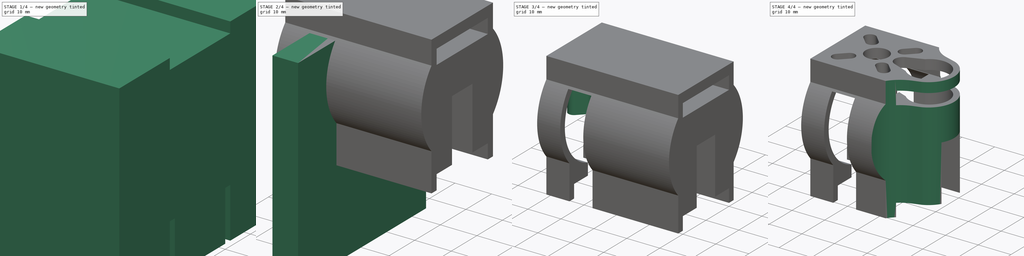
[diagram: build sequence overview — one tinted view per stage of 4, left to right]
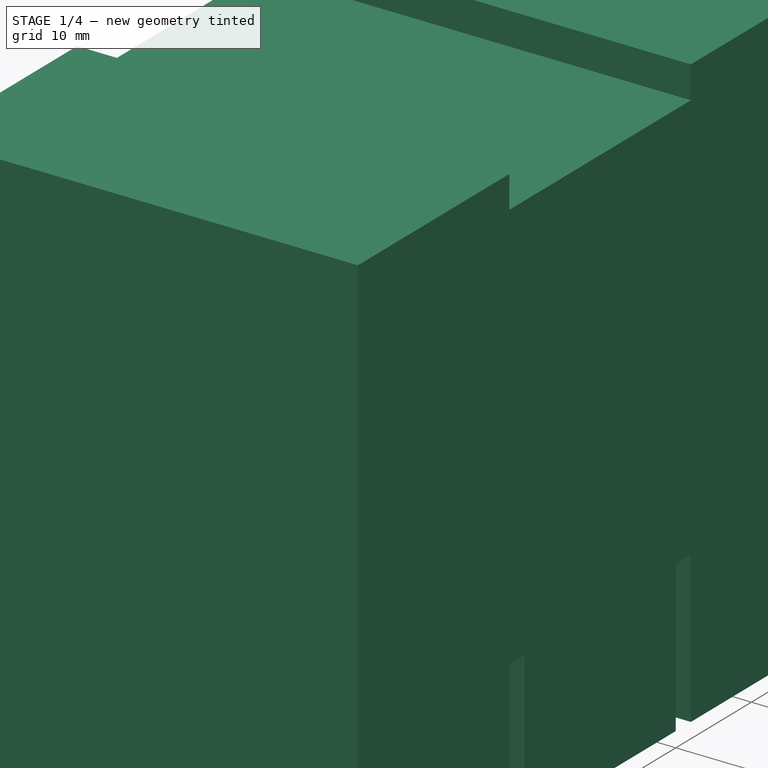
[diagram: stage 1 of 4 — iso view after this stage's code; geometry added in this stage tinted green]
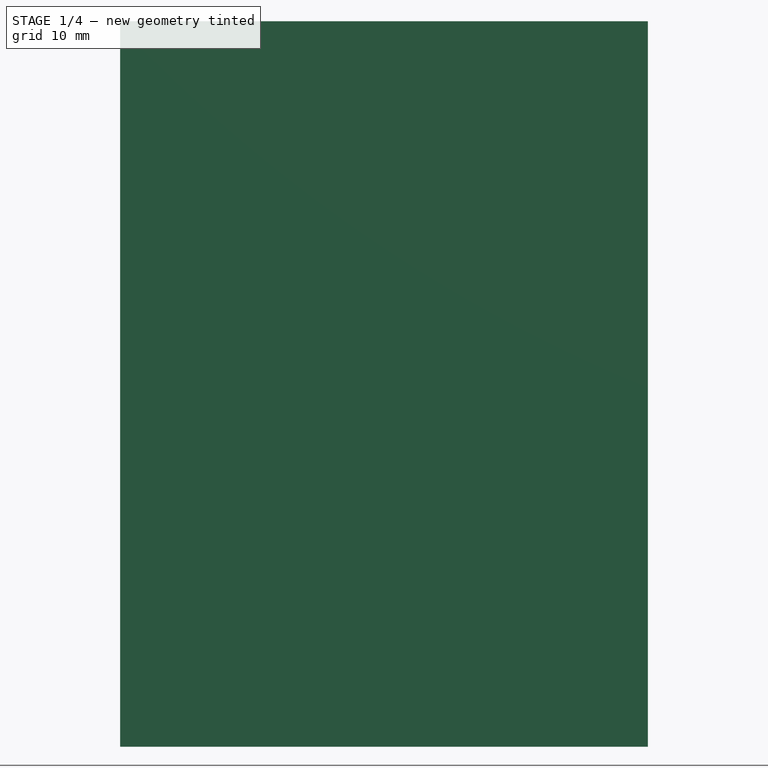
[diagram: stage 1 of 4 — front view after this stage's code; geometry added in this stage tinted green]
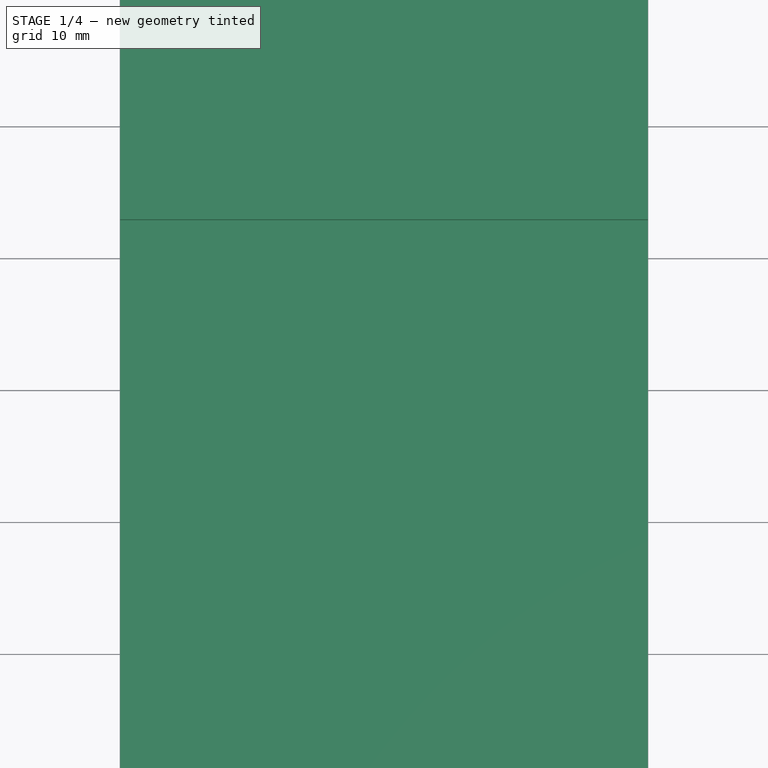
[diagram: stage 1 of 4 — top view after this stage's code; geometry added in this stage tinted green]
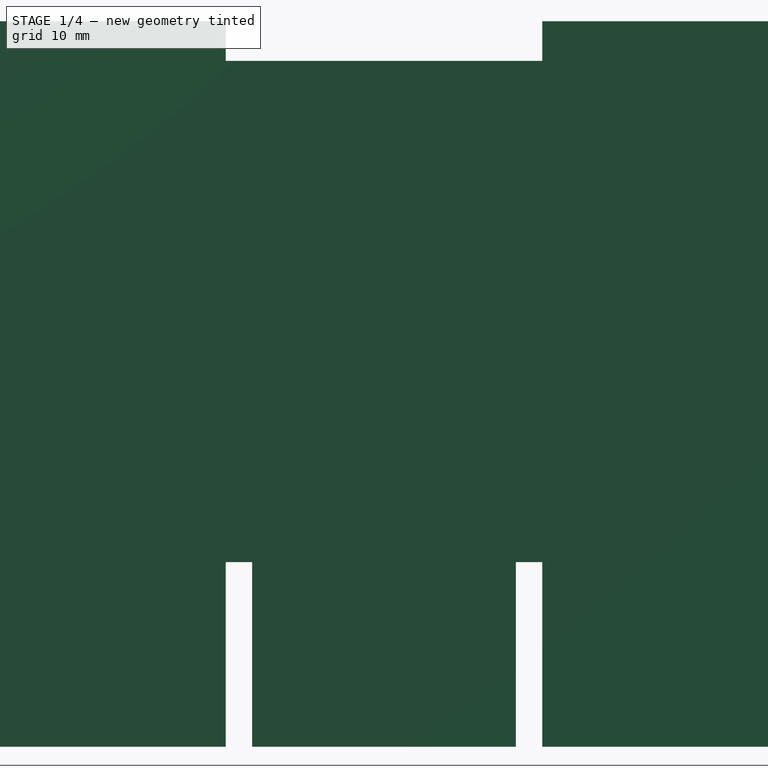
[diagram: stage 1 of 4 — right view after this stage's code; geometry added in this stage tinted green]
FCSTD DOCUMENT  (FreeCAD 0.16R6700 (Git))
Label: motor_landing_gear3
License: All rights reserved
LicenseURL: http://en.wikipedia.org/wiki/All_rights_reserved
objects: Part::Cut×5, Sketcher::SketchObject×4, Part::Extrusion×4, Part::Box×1, Part::Cylinder×1
note: 15 computed .brp shape members not serialized (recipe doc carries the construction recipe); baked Part::Feature solids carry a one-line shape summary decoded from their .brp

FEATURE [Part::Box] Box  label="Cube"
  Height = 38
  Length = 40
  Placement = pos=(0,-20,-21) rot=(0,0,1;0rad)
  Width = 40
FEATURE [Part::Cylinder] Cylinder
  Angle = 360
  Height = 21
  Placement = pos=(0,0,0) rot=(0,1,0;1.5708rad)
  Radius = 14
FEATURE [Part::Extrusion] Extrude004  label="Outer_tube_profile_extrude"
  Base = -> Sketch001
  Dir = (40,0,0)
  Solid = true
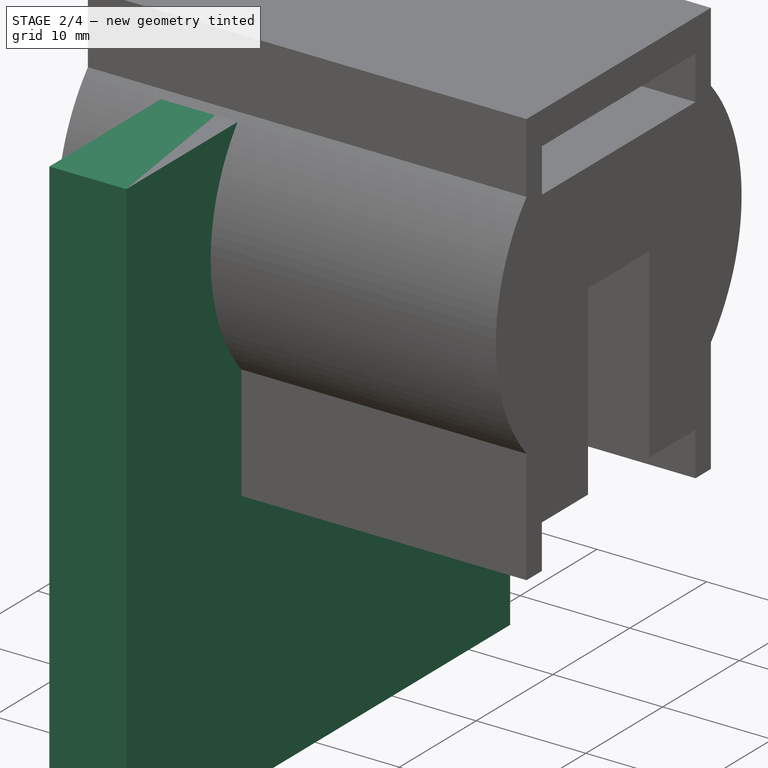
[diagram: stage 2 of 4 — iso view after this stage's code; geometry added in this stage tinted green]
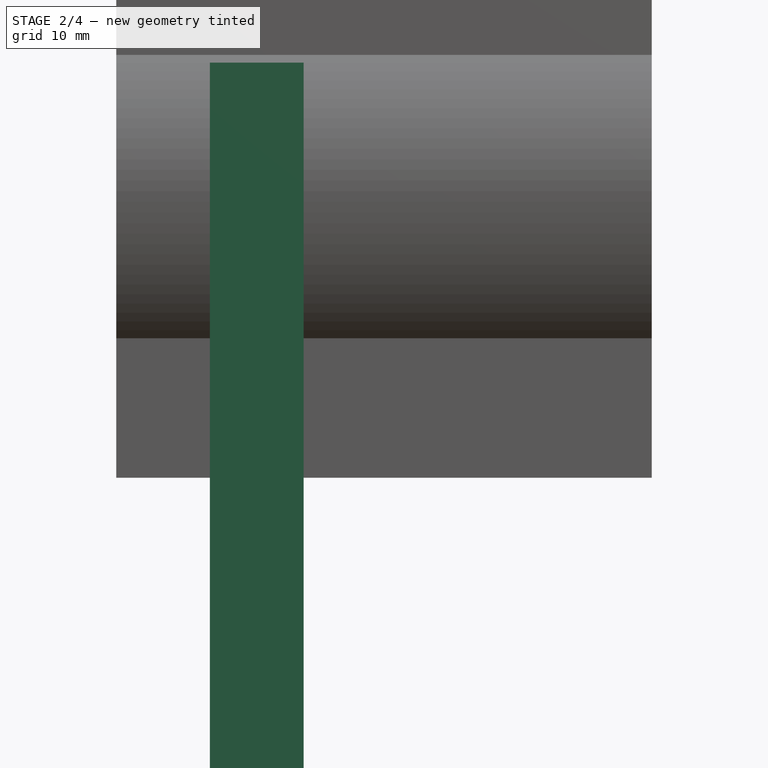
[diagram: stage 2 of 4 — front view after this stage's code; geometry added in this stage tinted green]
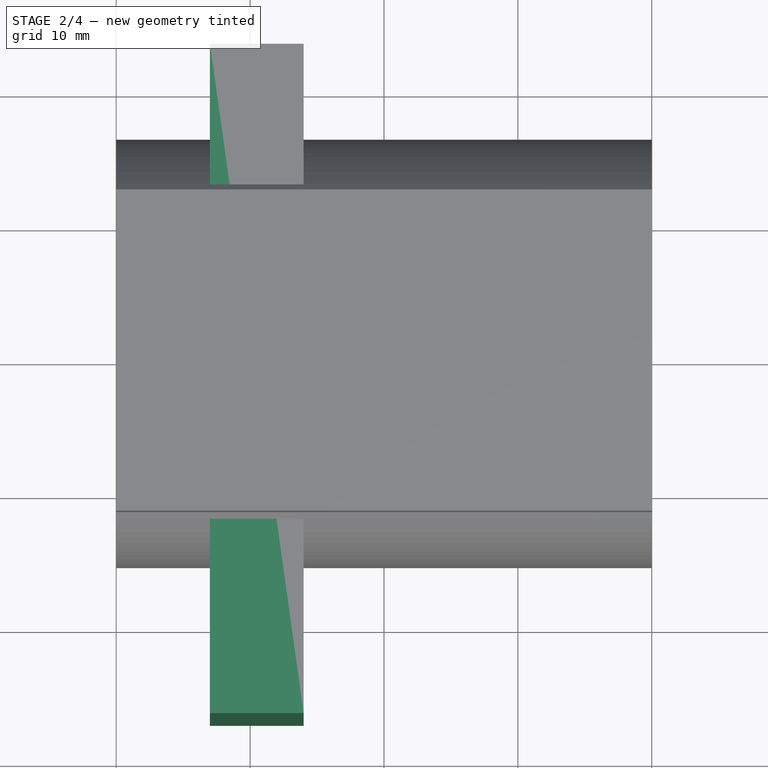
[diagram: stage 2 of 4 — top view after this stage's code; geometry added in this stage tinted green]
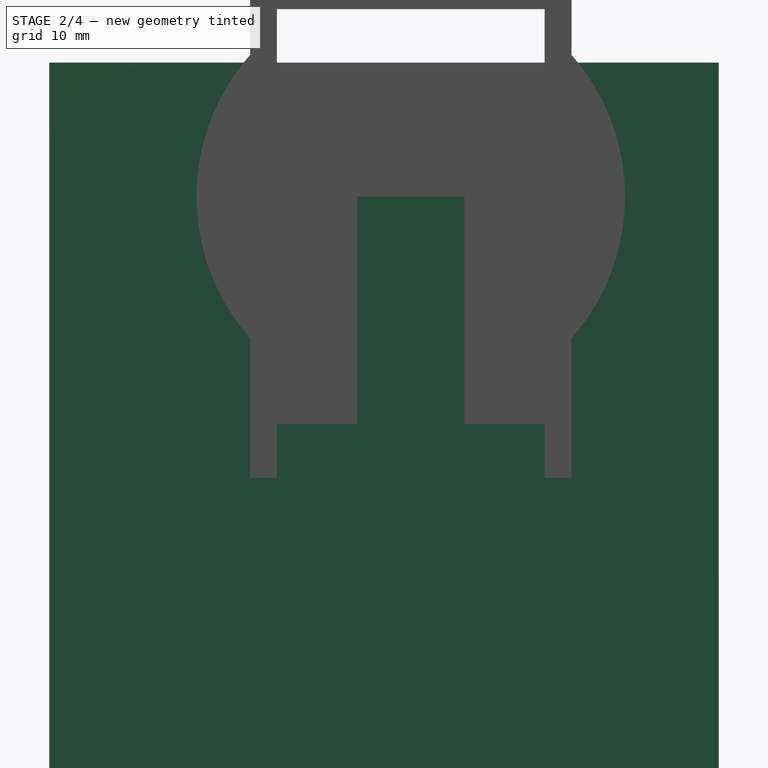
[diagram: stage 2 of 4 — right view after this stage's code; geometry added in this stage tinted green]
FEATURE [Part::Cut] Cut
  Base = -> Box
  Tool = -> Cylinder
FEATURE [Sketcher::SketchObject] Sketch001  label="Outer_tube_profile_sketch"
  Placement = pos=(0,0,0) rot=(0.57735,-0.57735,-0.57735;2.0944rad)
  sketch-geometry (24):
    g0: LineSegment StartX=-12 StartY=20 StartZ=0 EndX=-12 EndY=10.583 EndZ=0
    g1: ArcOfCircle CenterX=0 CenterY=0 CenterZ=0 NormalX=0 NormalY=0 NormalZ=1 Radius=16 StartAngle=5.56045 EndAngle=7.00592
    g2: ArcOfCircle CenterX=0 CenterY=0 CenterZ=0 NormalX=0 NormalY=0 NormalZ=1 Radius=16 StartAngle=2.41886 EndAngle=3.86433
    g3: LineSegment StartX=-12 StartY=20 StartZ=0 EndX=-32 EndY=20 EndZ=0
    g4: LineSegment StartX=-32 StartY=20 StartZ=0 EndX=-32 EndY=-35 EndZ=0
    g5: LineSegment StartX=-32 StartY=-35 StartZ=0 EndX=-12 EndY=-35 EndZ=0
    g6: LineSegment StartX=-12 StartY=-35 StartZ=0 EndX=-12 EndY=-10.583 EndZ=0
    g7: LineSegment StartX=12 StartY=20 StartZ=0 EndX=12 EndY=10.583 EndZ=0
    g8: LineSegment StartX=12 StartY=20 StartZ=0 EndX=32 EndY=20 EndZ=0
    g9: LineSegment StartX=32 StartY=20 StartZ=0 EndX=32 EndY=-35 EndZ=0
    g10: LineSegment StartX=32 StartY=-35 StartZ=0 EndX=12 EndY=-35 EndZ=0
    g11: LineSegment StartX=12 StartY=-35 StartZ=0 EndX=12 EndY=-10.583 EndZ=0
    g12: LineSegment StartX=-4 StartY=0 StartZ=0 EndX=4 EndY=0 EndZ=0
    g13: LineSegment StartX=4 StartY=0 StartZ=0 EndX=4 EndY=-17 EndZ=0
    g14: LineSegment StartX=4 StartY=-17 StartZ=0 EndX=10 EndY=-17 EndZ=0
    g15: LineSegment StartX=10 StartY=-17 StartZ=0 EndX=10 EndY=-35 EndZ=0
    g16: LineSegment StartX=10 StartY=-35 StartZ=0 EndX=-10 EndY=-35 EndZ=0
    g17: LineSegment StartX=-10 StartY=-35 StartZ=0 EndX=-10 EndY=-17 EndZ=0
    g18: LineSegment StartX=-10 StartY=-17 StartZ=0 EndX=-4 EndY=-17 EndZ=0
    g19: LineSegment StartX=-4 StartY=-17 StartZ=0 EndX=-4 EndY=0 EndZ=0
    g20: LineSegment StartX=-10 StartY=14 StartZ=0 EndX=10 EndY=14 EndZ=0
    g21: LineSegment StartX=10 StartY=14 StartZ=0 EndX=10 EndY=10 EndZ=0
    g22: LineSegment StartX=10 StartY=10 StartZ=0 EndX=-10 EndY=10 EndZ=0
    g23: LineSegment StartX=-10 StartY=10 StartZ=0 EndX=-10 EndY=14 EndZ=0
  constraints (68):
    c: Coincident(g2,g0)
    c: Coincident(g3,g0)
    c: Coincident(g7,g1)
    c: Coincident(g11,g1)
    c: Coincident(g6,g2)
    c: Coincident(g3,g4)
    c: Coincident(g4,g5)
    c: Coincident(g6,g5)
    c: Coincident(g9,g8)
    c: Coincident(g10,g9)
    c: Coincident(g11,g10)
    c: Coincident(g12,g13)
    c: Coincident(g19,g12)
    c: Coincident(g13,g14)
    c: Coincident(g15,g14)
    c: Coincident(g16,g15)
    c: Coincident(g16,g17)
    c: Coincident(g18,g17)
    c: Coincident(g19,g18)
    c: Radius(g1) = 16
    c: Symmetric(g0,g7,g-2)
    c: Symmetric(g3,g8,g-2)
    c: Symmetric(g12,g12,g-2)
    c: Symmetric(g2,g1,g-2)
    c: Symmetric(g14,g17,g-2)
    c: Horizontal(g3)
    c: Horizontal(g8)
    c: Vertical(g4)
    c: Vertical(g9)
    c: Vertical(g6)
    c: Vertical(g11)
    c: Vertical(g0)
    c: Vertical(g7)
    c: Vertical(g19)
    c: Vertical(g13)
    c: Vertical(g17)
    c: Horizontal(g18)
    c: Horizontal(g14)
    c: Horizontal(g5)
    c: Horizontal(g16)
    c: Horizontal(g10)
    c: Distance(g9) = 55
    c: Distance(g12) = 8
    c: Distance(g16) = 20
    c: Distance(g10) = 20
    c: Coincident(g2,g-1)
    c: Coincident(g1,g-1)
    c: Coincident(g8,g7)
    c: Distance(g7,g0) = 24
    c: DistanceY(g-1,g3) = 20
    c: Symmetric(g4,g9,g-2)
    c: Vertical(g15)
    c: Distance(g17) = 18
    c: Distance(g5,g16) = 2
    c: Distance(g13) = 17
    c: PointOnObject(g12,g-1)
    c: Coincident(g20,g21)
    c: Coincident(g21,g22)
    c: Coincident(g22,g23)
    c: Coincident(g23,g20)
    c: Horizontal(g20)
    c: Horizontal(g22)
    c: Vertical(g21)
    c: Vertical(g23)
    c: Symmetric(g20,g20,g-2)
    c: DistanceY(g-1,g20) = 14
    c: Distance(g20) = 20
    c: Distance(g21) = 4
FEATURE [Sketcher::SketchObject] Sketch002  label="Side_cut_lite_sketch"
  Placement = pos=(0,23,0) rot=(0,0.707107,0.707107;3.14159rad)
  sketch-geometry (5):
    g0: LineSegment StartX=-14 StartY=10 StartZ=0 EndX=-7 EndY=10 EndZ=0
    g1: LineSegment [constr] StartX=-10.5 StartY=10 StartZ=0 EndX=-10.5 EndY=-28 EndZ=0
    g2: LineSegment StartX=-14 StartY=10 StartZ=0 EndX=-14 EndY=-45 EndZ=0
    g3: LineSegment StartX=-14 StartY=-45 StartZ=0 EndX=-7 EndY=-45 EndZ=0
    g4: LineSegment StartX=-7 StartY=-45 StartZ=0 EndX=-7 EndY=10 EndZ=0
  constraints (15):
    c: Symmetric(g0,g0,g1)
    c: DistanceX(g-2,g0) = -7
    c: Coincident(g2,g0)
    c: Vertical(g2)
    c: Coincident(g3,g2)
    c: Horizontal(g3)
    c: Coincident(g4,g3)
    c: Coincident(g4,g0)
    c: Vertical(g4)
    c: Distance(g2) = 55
    c: Vertical(g1)
    c: Distance(g3) = 7
    c: Distance(g1) = 38
    c: DistanceY(g-1,g0) = 10
    c: PointOnObject(g1,g0)
FEATURE [Part::Extrusion] Extrude002  label="Side_cute_lite_extrude"
  Base = -> Sketch002
  Dir = (0,-50,0)
  Solid = true
FEATURE [Part::Cut] Cut001
  Base = -> Cut
  Tool = -> Extrude004
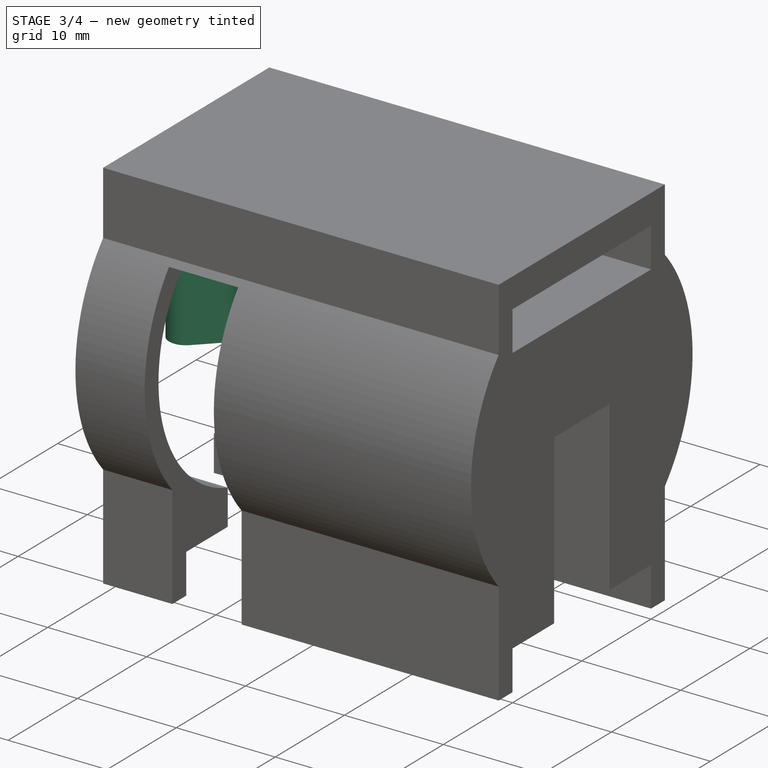
[diagram: stage 3 of 4 — iso view after this stage's code; geometry added in this stage tinted green]
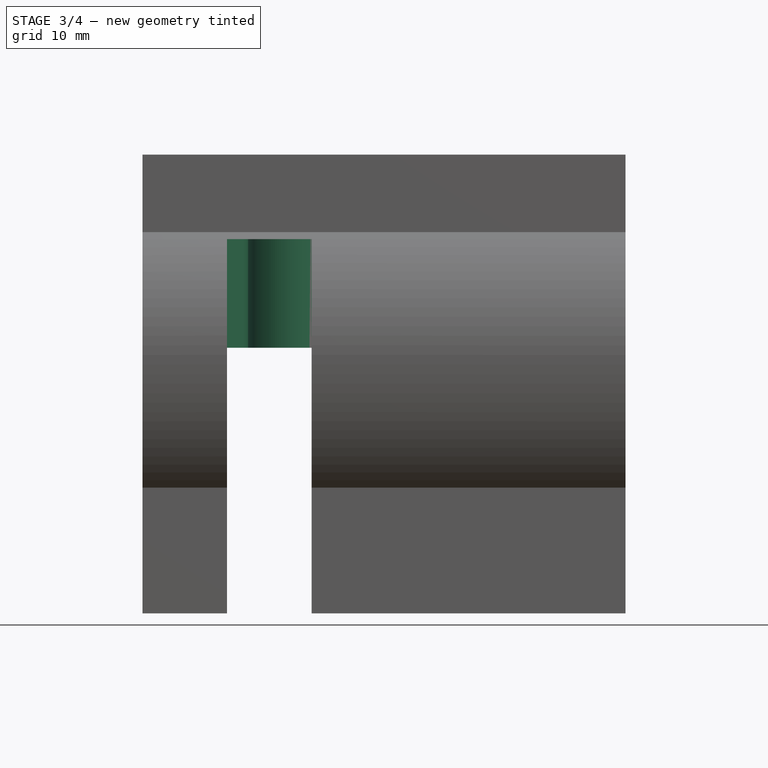
[diagram: stage 3 of 4 — front view after this stage's code; geometry added in this stage tinted green]
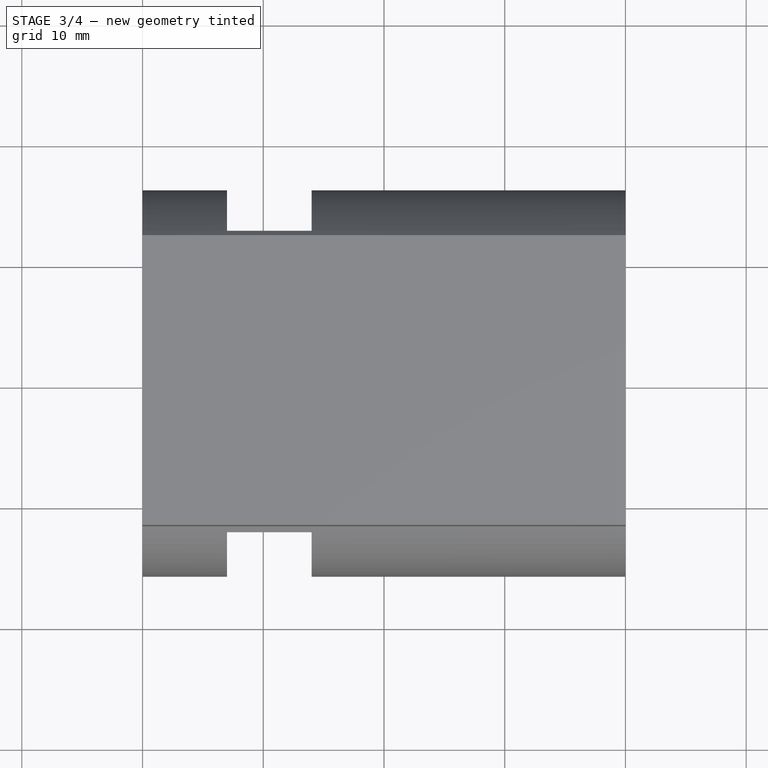
[diagram: stage 3 of 4 — top view after this stage's code; geometry added in this stage tinted green]
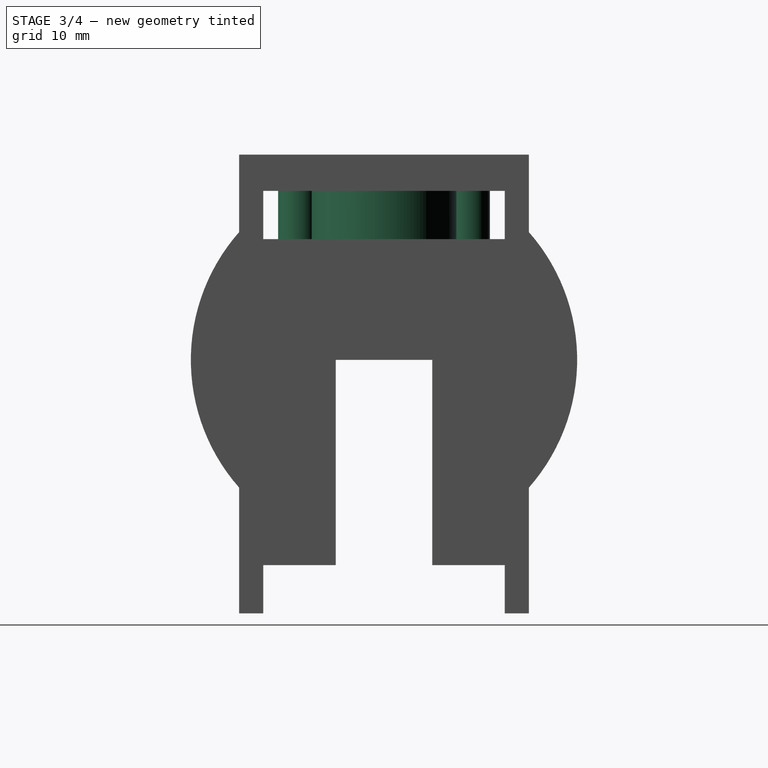
[diagram: stage 3 of 4 — right view after this stage's code; geometry added in this stage tinted green]
FEATURE [Sketcher::SketchObject] Sketch004  label="motor_mount_sketch"
  Placement = pos=(-4,0,17) rot=(0,0,-1;1.5708rad)
  sketch-geometry (33):
    g0: LineSegment [constr] StartX=-52.5816 StartY=28 StartZ=0 EndX=-52.5816 EndY=0 EndZ=0
    g1: LineSegment [constr] StartX=-52.5816 StartY=0 StartZ=0 EndX=-0.2 EndY=0 EndZ=0
    g2: LineSegment [constr] StartX=0.2 StartY=0 StartZ=0 EndX=52.5816 EndY=0 EndZ=0
    g3: LineSegment [constr] StartX=52.5816 StartY=0 StartZ=0 EndX=52.5816 EndY=28 EndZ=0
    g4: LineSegment [constr] StartX=-52.5816 StartY=28 StartZ=0 EndX=-10.5816 EndY=28 EndZ=0
    g5: LineSegment [constr] StartX=10.5816 StartY=28 StartZ=0 EndX=52.5816 EndY=28 EndZ=0
    g6: ArcOfCircle [constr] CenterX=0 CenterY=15.9987 CenterZ=0 NormalX=0 NormalY=0 NormalZ=1 Radius=16 StartAngle=2.29341 EndAngle=4.69989
    g7: ArcOfCircle [constr] CenterX=0 CenterY=15.9987 CenterZ=0 NormalX=0 NormalY=0 NormalZ=1 Radius=16 StartAngle=4.72489 EndAngle=7.13137
    g8: Circle CenterX=0 CenterY=15.9987 CenterZ=0 NormalX=0 NormalY=0 NormalZ=1 Radius=3.5
    g9: LineSegment [constr] StartX=-15.9987 StartY=0 StartZ=0 EndX=12.0013 EndY=28 EndZ=0
    g10: LineSegment [constr] StartX=-12.0013 StartY=28 StartZ=0 EndX=15.9987 EndY=0 EndZ=0
    g11: ArcOfCircle CenterX=-4.94975 CenterY=20.9485 CenterZ=0 NormalX=0 NormalY=0 NormalZ=1 Radius=1.7 StartAngle=3.92699 EndAngle=7.06858
    g12: ArcOfCircle CenterX=-7.07107 CenterY=23.0698 CenterZ=0 NormalX=0 NormalY=0 NormalZ=1 Radius=1.7 StartAngle=0.785398 EndAngle=3.92699
    g13: LineSegment StartX=-3.74767 StartY=22.1506 StartZ=0 EndX=-5.86899 EndY=24.2719 EndZ=0
    g14: LineSegment StartX=-6.15183 StartY=19.7464 StartZ=0 EndX=-8.27315 EndY=21.8677 EndZ=0
    g15: ArcOfCircle CenterX=-4.94975 CenterY=11.049 CenterZ=0 NormalX=0 NormalY=0 NormalZ=1 Radius=1.7 StartAngle=5.49779 EndAngle=8.63938
    g16: ArcOfCircle CenterX=-7.07107 CenterY=8.92768 CenterZ=0 NormalX=0 NormalY=0 NormalZ=1 Radius=1.7 StartAngle=2.35619 EndAngle=5.49779
    g17: LineSegment StartX=-6.15183 StartY=12.2511 StartZ=0 EndX=-8.27315 EndY=10.1298 EndZ=0
    g18: LineSegment StartX=-3.74767 StartY=9.84692 StartZ=0 EndX=-5.86899 EndY=7.7256 EndZ=0
    g19: ArcOfCircle CenterX=4.94975 CenterY=11.049 CenterZ=0 NormalX=0 NormalY=0 NormalZ=1 Radius=1.7 StartAngle=0.785398 EndAngle=3.92699
    g20: ArcOfCircle CenterX=7.07107 CenterY=8.92768 CenterZ=0 NormalX=0 NormalY=0 NormalZ=1 Radius=1.7 StartAngle=3.92699 EndAngle=7.06858
    g21: LineSegment StartX=3.74767 StartY=9.84692 StartZ=0 EndX=5.86899 EndY=7.7256 EndZ=0
    g22: LineSegment StartX=6.15183 StartY=12.2511 StartZ=0 EndX=8.27315 EndY=10.1298 EndZ=0
    g23: ArcOfCircle CenterX=4.94975 CenterY=20.9485 CenterZ=0 NormalX=0 NormalY=0 NormalZ=1 Radius=1.7 StartAngle=2.35619 EndAngle=5.49779
    g24: ArcOfCircle CenterX=7.07107 CenterY=23.0698 CenterZ=0 NormalX=0 NormalY=0 NormalZ=1 Radius=1.7 StartAngle=5.49779 EndAngle=8.63938
    g25: LineSegment StartX=6.15183 StartY=19.7464 StartZ=0 EndX=8.27315 EndY=21.8677 EndZ=0
    g26: LineSegment StartX=3.74767 StartY=22.1506 StartZ=0 EndX=5.86899 EndY=24.2719 EndZ=0
    g27: Circle [constr] CenterX=0 CenterY=15.9987 CenterZ=0 NormalX=0 NormalY=0 NormalZ=1 Radius=7
    g28: LineSegment StartX=-2.42465 StartY=23.0601 StartZ=0 EndX=-4.24264 EndY=27.7561 EndZ=0
    g29: LineSegment StartX=2.42465 StartY=23.0601 StartZ=0 EndX=4.24264 EndY=27.7561 EndZ=0
    g30: ArcOfCircle CenterX=0 CenterY=31.9987 CenterZ=0 NormalX=0 NormalY=0 NormalZ=1 Radius=6 StartAngle=5.49779 EndAngle=10.2102
    g31: ArcOfCircle CenterX=0 CenterY=23.9987 CenterZ=0 NormalX=0 NormalY=0 NormalZ=1 Radius=2.6 StartAngle=3.51096 EndAngle=5.91382
    g32: LineSegment [constr] StartX=-16 StartY=15.9987 StartZ=0 EndX=16 EndY=15.9987 EndZ=0
  constraints (91):
    c: PointOnObject(g0,g-1)
    c: Vertical(g0)
    c: Coincident(g1,g0)
    c: PointOnObject(g1,g-1)
    c: Horizontal(g2)
    c: Coincident(g3,g2)
    c: Vertical(g3)
    c: Symmetric(g2,g1,g-2)
    c: Symmetric(g0,g2,g-2)
    c: DistanceX(g-2,g1) = -0.2
    c: Equal(g0,g3)
    c: Coincident(g4,g0)
    c: Horizontal(g4)
    c: Coincident(g5,g3)
    c: Horizontal(g5)
    c: Symmetric(g5,g4,g-2)
    c: Coincident(g6,g4)
    c: Coincident(g6,g1)
    c: Coincident(g7,g6)
    c: Coincident(g7,g5)
    c: Coincident(g7,g2)
    c: Distance(g4) = 42
    c: Radius(g6) = 16
    c: Distance(g0) = 28
    c: Radius(g8) = 3.5
    c: Coincident(g8,g6)
    c: PointOnObject(g9,g5)
    c: PointOnObject(g10,g4)
    c: PointOnObject(g10,g2)
    c: PointOnObject(g6,g9)
    c: PointOnObject(g6,g10)
    c: Angle(g9,g10) = 1.5708
    c: Equal(g10,g9)
    c: PointOnObject(g9,g1)
    c: Tangent(g11,g14) = 1.5708
    c: Tangent(g11,g13) = -1.5708
    c: Tangent(g13,g12) = -1.5708
    c: Tangent(g14,g12) = 1.5708
    c: Equal(g11,g12)
    c: PointOnObject(g11,g10)
    c: PointOnObject(g12,g10)
    c: Distance(g11,g6) = 7
    c: Radius(g12) = 1.7
    c: Distance(g13) = 3
    c: Tangent(g15,g18) = 1.5708
    c: Tangent(g15,g17) = -1.5708
    c: Tangent(g17,g16) = -1.5708
    c: Tangent(g18,g16) = 1.5708
    c: Equal(g15,g16)
    c: PointOnObject(g15,g9)
    c: PointOnObject(g16,g9)
    c: PointOnObject(g19,g10)
    c: PointOnObject(g23,g9)
    c: Equal(g15,g11)
    c: Equal(g14,g17)
    c: Tangent(g19,g22) = 1.5708
    c: Tangent(g19,g21) = -1.5708
    c: Tangent(g21,g20) = -1.5708
    c: Tangent(g22,g20) = 1.5708
    c: Equal(g19,g20)
    c: PointOnObject(g20,g10)
    c: Equal(g19,g11)
    c: Equal(g21,g14)
    c: Tangent(g23,g26) = 1.5708
    c: Tangent(g23,g25) = -1.5708
    c: Tangent(g25,g24) = -1.5708
    c: Tangent(g26,g24) = 1.5708
    c: Equal(g23,g24)
    c: PointOnObject(g24,g9)
    c: Equal(g23,g11)
    c: Equal(g26,g13)
    c: Coincident(g27,g6)
    c: PointOnObject(g11,g27)
    c: PointOnObject(g15,g27)
    c: PointOnObject(g19,g27)
    c: PointOnObject(g23,g27)
    c: Symmetric(g29,g28,g-2)
    c: Coincident(g30,g28)
    c: Coincident(g30,g29)
    c: Radius(g30) = 6
    c: Angle(g30) = 4.71239
    c: Tangent(g28,g31) = 1.5708
    c: Tangent(g29,g31) = -1.5708
    c: Symmetric(g29,g28,g-2)
    c: Radius(g31) = 2.6
    c: Distance(g30,g6) = 16
    c: PointOnObject(g32,g6)
    c: PointOnObject(g32,g7)
    c: Horizontal(g32)
    c: PointOnObject(g6,g32)
    c: Distance(g31,g32) = 8
FEATURE [Part::Extrusion] Extrude003  label="motor_mount_sketch_extrude"
  Base = -> Sketch004
  Dir = (0,0,-16)
  Solid = true
FEATURE [Part::Cut] Cut002
  Base = -> Cut001
  Tool = -> Extrude002
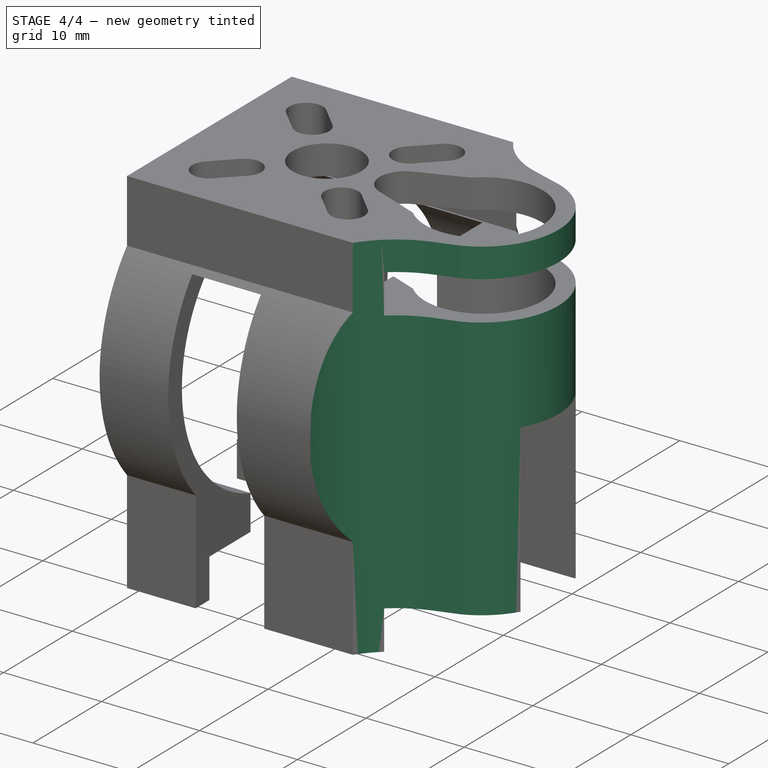
[diagram: stage 4 of 4 — iso view after this stage's code; geometry added in this stage tinted green]
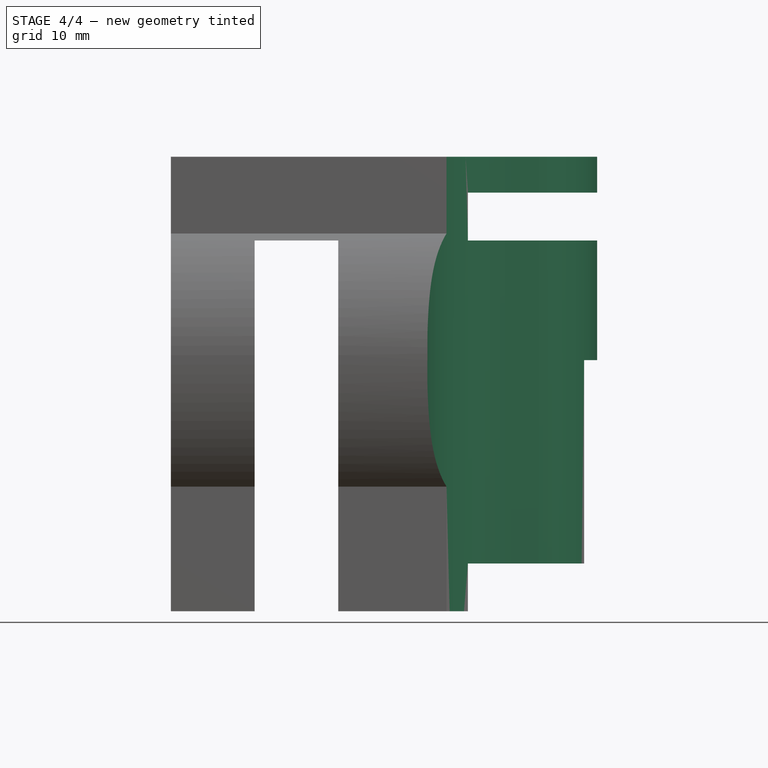
[diagram: stage 4 of 4 — front view after this stage's code; geometry added in this stage tinted green]
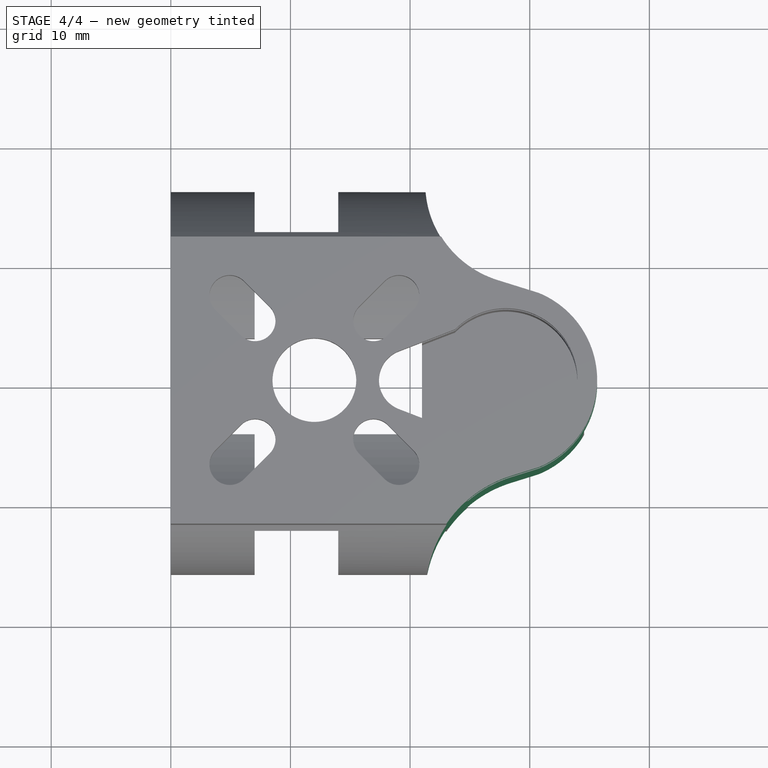
[diagram: stage 4 of 4 — top view after this stage's code; geometry added in this stage tinted green]
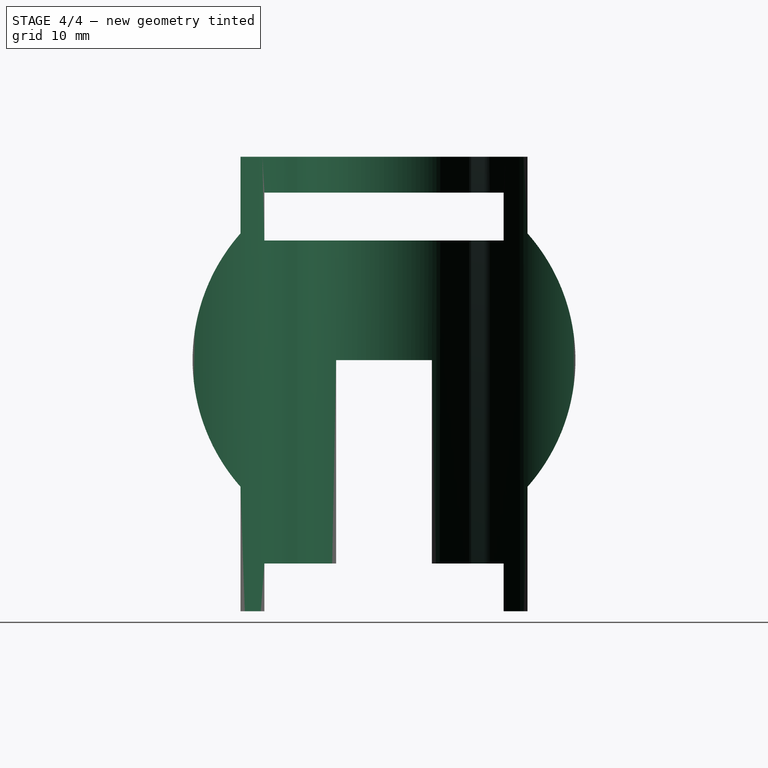
[diagram: stage 4 of 4 — right view after this stage's code; geometry added in this stage tinted green]
FEATURE [Part::Cut] Cut003
  Base = -> Cut002
  Tool = -> Extrude003
FEATURE [Sketcher::SketchObject] Sketch
  Placement = pos=(0,0,17) rot=(0,0,1;0rad)
  Support = -> Cut003 [Face2]
  sketch-geometry (10):
    g0: ArcOfCircle CenterX=27.7644 CenterY=0 CenterZ=0 NormalX=0 NormalY=0 NormalZ=1 Radius=7.87454 StartAngle=5.10243 EndAngle=7.46394
    g1: LineSegment StartX=30.7585 StartY=-7.28312 StartZ=0 EndX=28.4205 EndY=-8.01436 EndZ=0
    g2: LineSegment StartX=21.2777 StartY=-17.7324 StartZ=0 EndX=21.2777 EndY=-32.4995 EndZ=0
    g3: LineSegment StartX=21.2777 StartY=-32.4995 StartZ=0 EndX=57.6228 EndY=-32.4995 EndZ=0
    g4: LineSegment StartX=57.6228 StartY=-32.4995 StartZ=0 EndX=57.6228 EndY=32.4995 EndZ=0
    g5: LineSegment StartX=57.6228 StartY=32.4995 StartZ=0 EndX=21.2777 EndY=32.4995 EndZ=0
    g6: LineSegment StartX=21.2777 StartY=32.4995 StartZ=0 EndX=21.2777 EndY=16.5754 EndZ=0
    g7: LineSegment StartX=30.7585 StartY=7.28312 StartZ=0 EndX=27.3229 EndY=8.35556 EndZ=0
    g8: ArcOfCircle CenterX=29.8887 CenterY=16.5754 CenterZ=0 NormalX=0 NormalY=0 NormalZ=1 Radius=8.61101 StartAngle=3.14159 EndAngle=4.40982
    g9: ArcOfCircle CenterX=31.46 CenterY=-17.7324 CenterZ=0 NormalX=0 NormalY=0 NormalZ=1 Radius=10.1823 StartAngle=1.87392 EndAngle=3.14159
  constraints (18):
    c: PointOnObject(g0,g-1)
    c: Symmetric(g0,g0,g-1)
    c: Coincident(g1,g0)
    c: Vertical(g2)
    c: Coincident(g3,g2)
    c: Horizontal(g3)
    c: Coincident(g4,g3)
    c: Vertical(g4)
    c: Coincident(g5,g4)
    c: Horizontal(g5)
    c: Coincident(g6,g5)
    c: Vertical(g6)
    c: Coincident(g7,g0)
    c: Symmetric(g2,g5,g-1)
    c: Tangent(g6,g8) = -1.5708
    c: Tangent(g7,g8) = 1.5708
    c: Tangent(g2,g9) = -1.5708
    c: Tangent(g1,g9) = -1.5708
FEATURE [Part::Extrusion] Extrude
  Base = -> Sketch
  Dir = (0,0,-50)
  Solid = true
FEATURE [Part::Cut] Cut004
  Base = -> Cut003
  Tool = -> Extrude
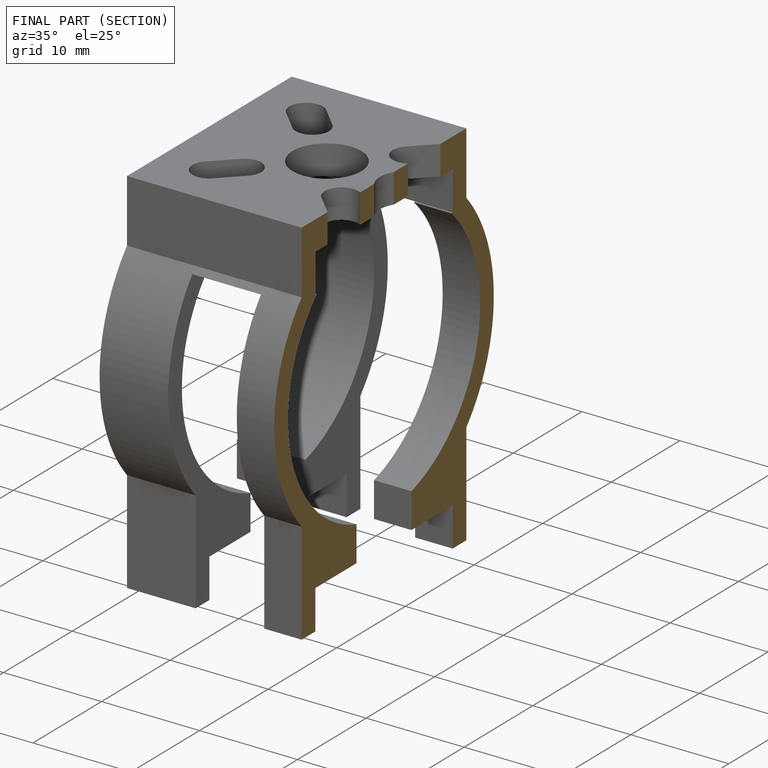
[diagram: finished part — half-section view (interior)]
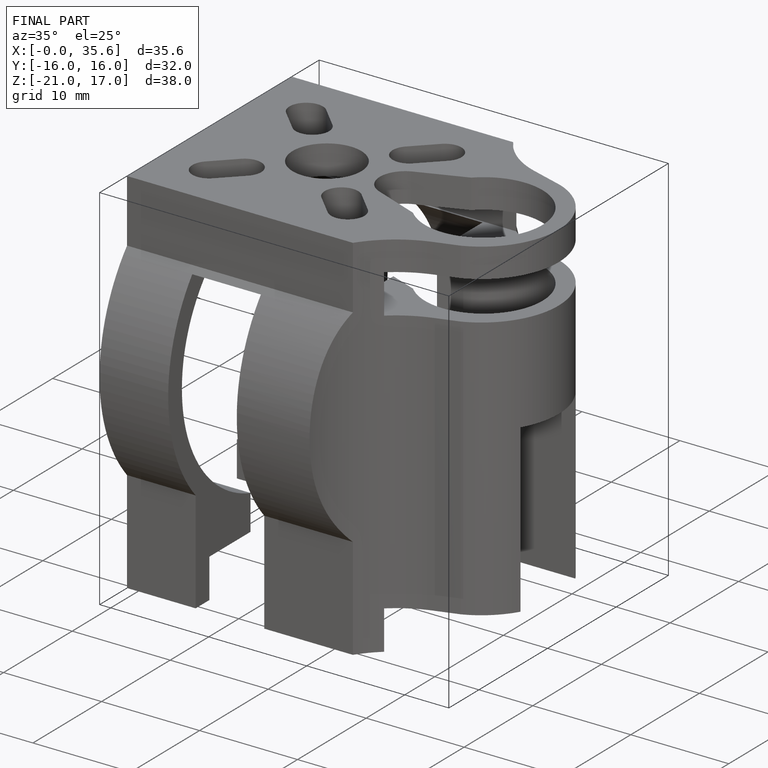
[diagram: finished part — iso view with bounding-box wireframe]
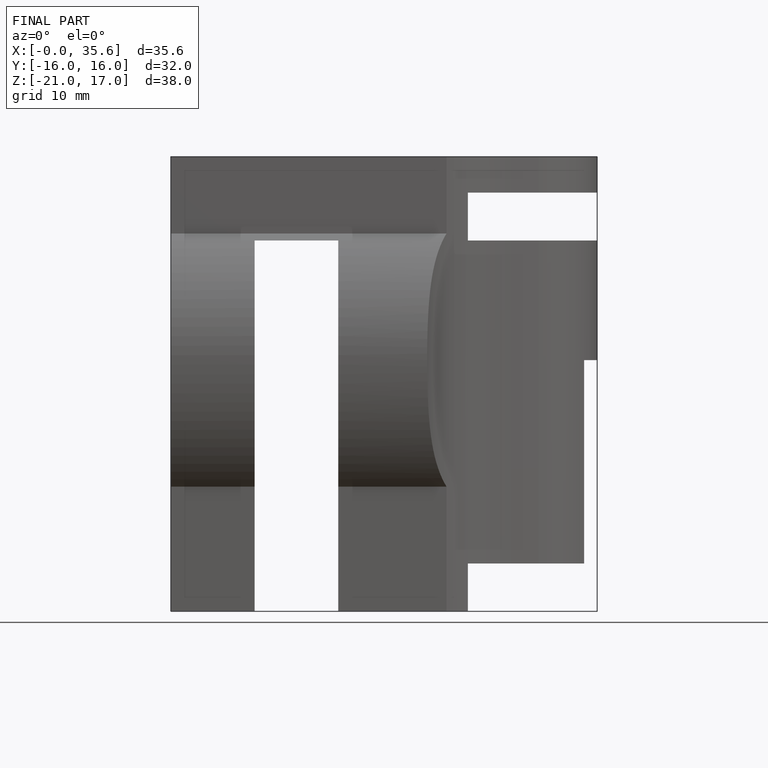
[diagram: finished part — front view with bounding-box wireframe]
